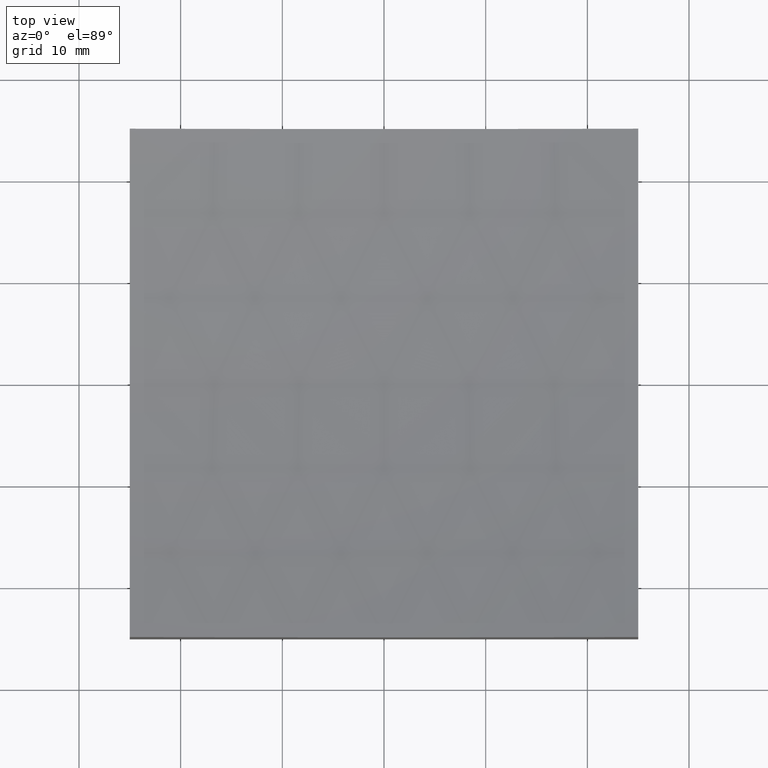
[diagram: clean part render]
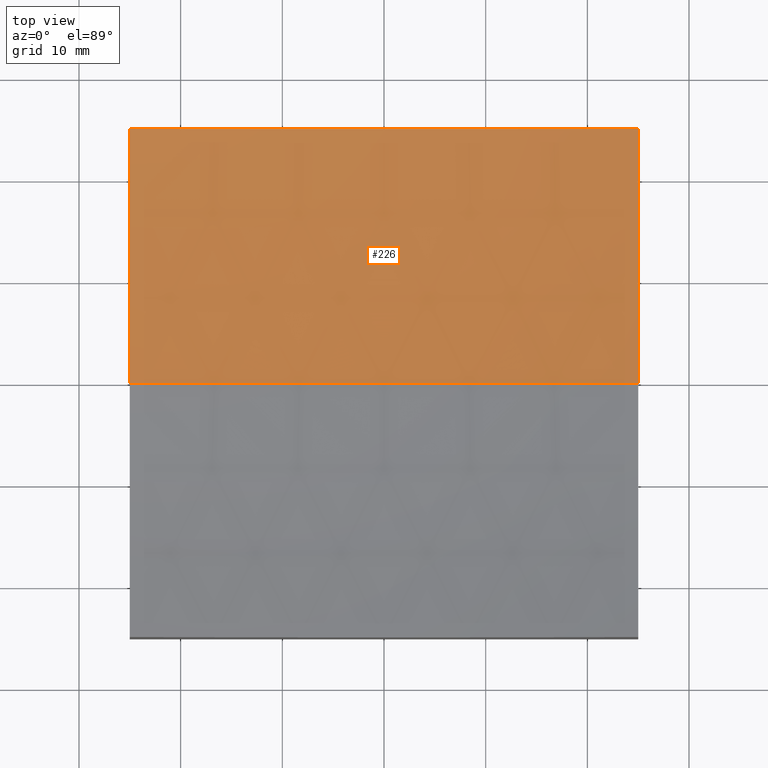
[diagram: same view with one face highlighted and labeled with its STEP entity id]
A machine part, top view. The second image highlights one B-rep face of the part: STEP entity #226.
In plain terms, the highlighted spherical surface has radius 150 mm.
Its self-contained STEP definition (entity closure, byte-faithful):
#1 = DIRECTION ( 'NONE',  ( 1.000000000000000000, 0.0000000000000000000, 5.551115123125783688E-16 ) ) ;
#9 = VERTEX_POINT ( 'NONE', #13 ) ;
#12 = ORIENTED_EDGE ( 'NONE', *, *, #174, .F. ) ;
#13 = CARTESIAN_POINT ( 'NONE',  ( 24.99999999999999645, 24.99999999999999645, 13.22620262886753295 ) ) ;
#22 = CARTESIAN_POINT ( 'NONE',  ( 1.947188410644291696E-14, 0.0000000000000000000, 159.0000000000000000 ) ) ;
#35 = ORIENTED_EDGE ( 'NONE', *, *, #133, .T. ) ;
#41 = DIRECTION ( 'NONE',  ( 0.0000000000000000000, 0.0000000000000000000, 1.000000000000000000 ) ) ;
#44 = DIRECTION ( 'NONE',  ( 1.000000000000000000, 6.938893903907228378E-17, -0.0000000000000000000 ) ) ;
#49 = CIRCLE ( 'NONE', #201, 147.9019945774903704 ) ;
#51 = ORIENTED_EDGE ( 'NONE', *, *, #122, .F. ) ;
#53 = EDGE_CURVE ( 'NONE', #173, #107, #127, .T. ) ;
#54 = CIRCLE ( 'NONE', #179, 149.9999999999999716 ) ;
#60 = CARTESIAN_POINT ( 'NONE',  ( 1.947188410644291696E-14, 24.99999999999999645, 159.0000000000000000 ) ) ;
#63 = CARTESIAN_POINT ( 'NONE',  ( -25.00000000000000355, 3.061616997868396453E-15, 11.09800542250961897 ) ) ;
#64 = DIRECTION ( 'NONE',  ( 1.000000000000000000, 6.938893903907228378E-17, -0.0000000000000000000 ) ) ;
#75 = CARTESIAN_POINT ( 'NONE',  ( 1.947188410644291696E-14, 0.0000000000000000000, 159.0000000000000000 ) ) ;
#78 = CIRCLE ( 'NONE', #83, 147.9019945774903420 ) ;
#83 = AXIS2_PLACEMENT_3D ( 'NONE', #60, #136, #41 ) ;
#84 = DIRECTION ( 'NONE',  ( 0.0000000000000000000, -1.000000000000000000, 0.0000000000000000000 ) ) ;
#97 = DIRECTION ( 'NONE',  ( 1.224646799147353207E-16, 1.000000000000000000, 7.185297002079678583E-32 ) ) ;
#98 = SPHERICAL_SURFACE ( 'NONE', #205, 149.9999999999999716 ) ;
#102 = CARTESIAN_POINT ( 'NONE',  ( -25.00000000000000355, -1.734723475976809067E-15, 159.0000000000000000 ) ) ;
#107 = VERTEX_POINT ( 'NONE', #176 ) ;
#122 = EDGE_CURVE ( 'NONE', #173, #164, #54, .T. ) ;
#123 = AXIS2_PLACEMENT_3D ( 'NONE', #102, #44, #239 ) ;
#127 = CIRCLE ( 'NONE', #193, 149.9999999999999716 ) ;
#130 = ORIENTED_EDGE ( 'NONE', *, *, #53, .T. ) ;
#133 = EDGE_CURVE ( 'NONE', #9, #145, #78, .T. ) ;
#134 = FACE_OUTER_BOUND ( 'NONE', #192, .T. ) ;
#136 = DIRECTION ( 'NONE',  ( 0.0000000000000000000, 1.000000000000000000, 0.0000000000000000000 ) ) ;
#145 = VERTEX_POINT ( 'NONE', #155 ) ;
#155 = CARTESIAN_POINT ( 'NONE',  ( -25.00000000000000711, 24.99999999999999645, 13.22620262886753295 ) ) ;
#163 = CARTESIAN_POINT ( 'NONE',  ( 1.166653389736183042E-13, 0.0000000000000000000, 9.000000000000035527 ) ) ;
#164 = VERTEX_POINT ( 'NONE', #63 ) ;
#167 = DIRECTION ( 'NONE',  ( 0.0000000000000000000, 0.0000000000000000000, -1.000000000000000000 ) ) ;
#173 = VERTEX_POINT ( 'NONE', #163 ) ;
#174 = EDGE_CURVE ( 'NONE', #164, #145, #230, .T. ) ;
#176 = CARTESIAN_POINT ( 'NONE',  ( 24.99999999999999645, 9.629649721936179265E-32, 11.09800542250961897 ) ) ;
#178 = CARTESIAN_POINT ( 'NONE',  ( 24.99999999999999645, 1.734723475976805517E-15, 159.0000000000000000 ) ) ;
#179 = AXIS2_PLACEMENT_3D ( 'NONE', #22, #97, #218 ) ;
#184 = EDGE_CURVE ( 'NONE', #107, #9, #49, .T. ) ;
#190 = ORIENTED_EDGE ( 'NONE', *, *, #184, .T. ) ;
#192 = EDGE_LOOP ( 'NONE', ( #51, #130, #190, #35, #12 ) ) ;
#193 = AXIS2_PLACEMENT_3D ( 'NONE', #208, #84, #167 ) ;
#196 = DIRECTION ( 'NONE',  ( -0.0000000000000000000, 1.000000000000000000, 0.0000000000000000000 ) ) ;
#201 = AXIS2_PLACEMENT_3D ( 'NONE', #178, #64, #203 ) ;
#203 = DIRECTION ( 'NONE',  ( -7.037322847196354140E-17, 1.000000000000000000, 0.0000000000000000000 ) ) ;
#205 = AXIS2_PLACEMENT_3D ( 'NONE', #75, #196, #1 ) ;
#208 = CARTESIAN_POINT ( 'NONE',  ( 1.947188410644291696E-14, 0.0000000000000000000, 159.0000000000000000 ) ) ;
#218 = DIRECTION ( 'NONE',  ( -1.000000000000000000, 1.224646799147353207E-16, 0.0000000000000000000 ) ) ;
#226 = ADVANCED_FACE ( 'NONE', ( #134 ), #98, .F. ) ;
#230 = CIRCLE ( 'NONE', #123, 147.9019945774903704 ) ;
#239 = DIRECTION ( 'NONE',  ( -7.037322847196354140E-17, 1.000000000000000000, 0.0000000000000000000 ) ) ;